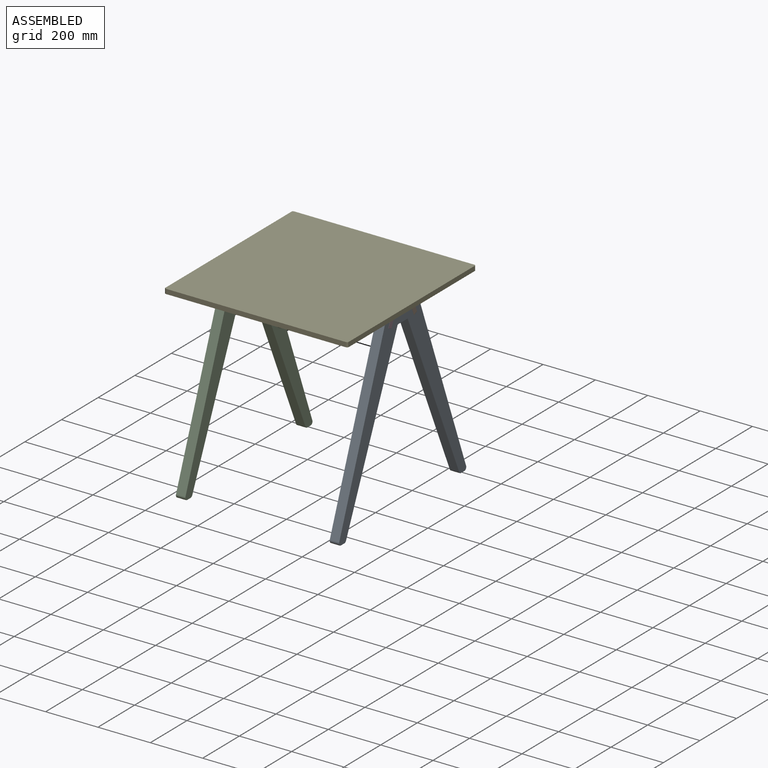
[diagram: assembled view]
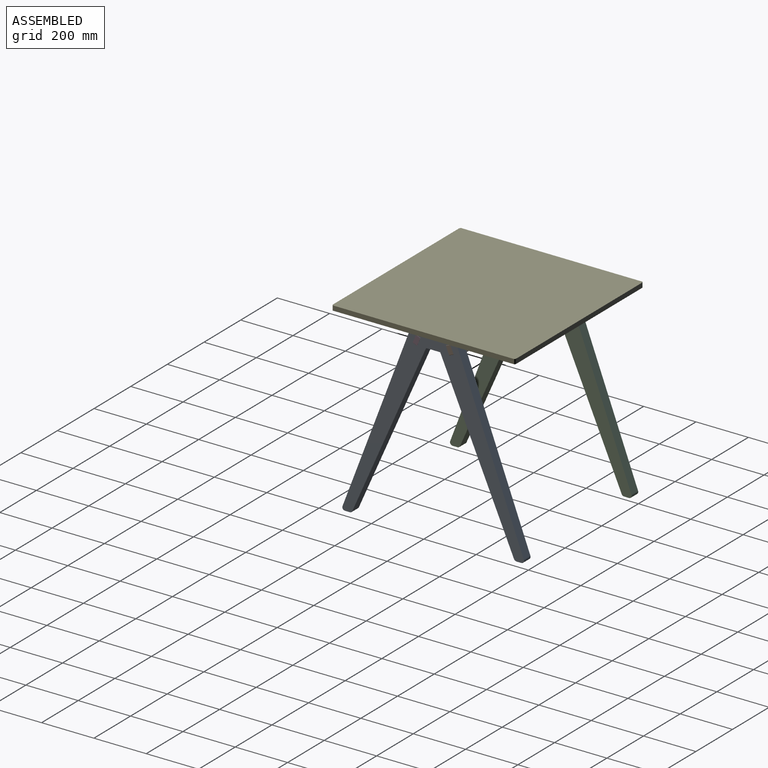
[diagram: assembled view, second angle]
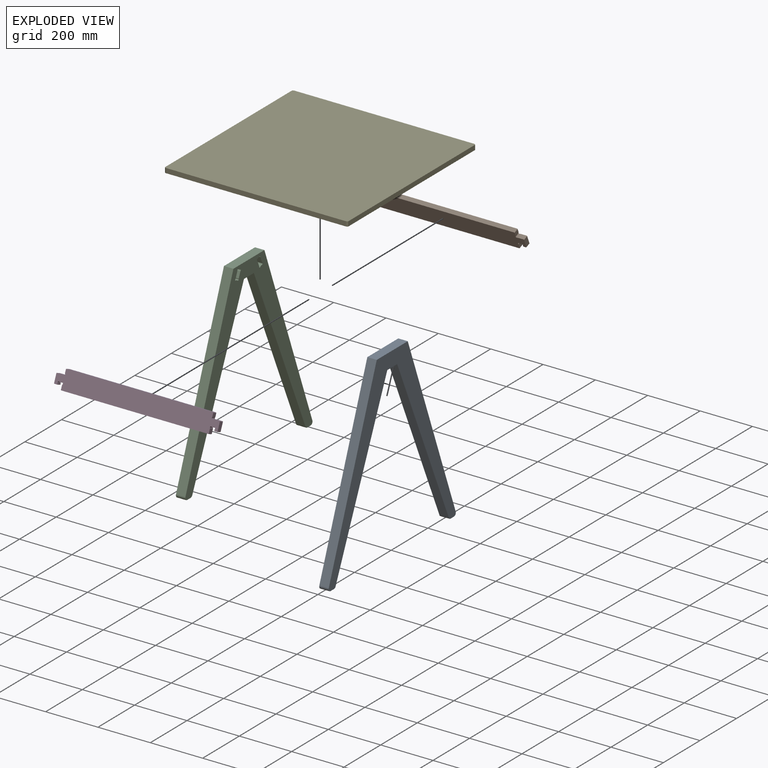
[diagram: exploded view]
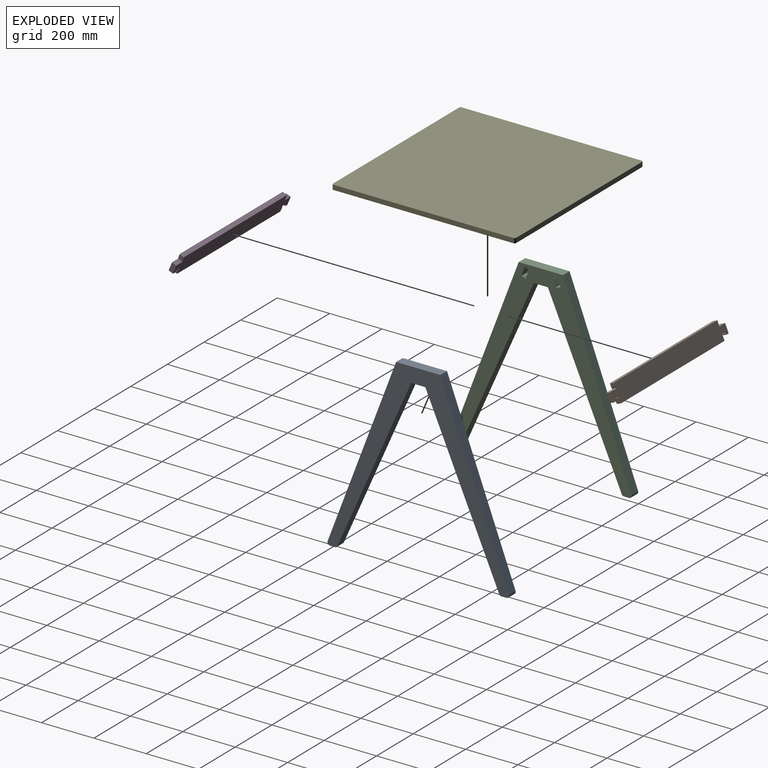
[diagram: exploded view, second angle]
ASSEMBLY  parts=5 mates=3
PART A: 38 faces, bbox 36x694.1x702 mm
  f0: plane 702.04x694.13mm, normal (-1,0,0), area 86384.5mm2, adj f1,f2,f3,f4,f5,f6,f7,f8
  f1: plane 36x27mm, normal (0,0,-1), area 971.9mm2, adj f0,f2,f18,f19
  f2: plane 36x0mm, normal (0,-0.85,0.53), area 0.2mm2, adj f0,f1,f3,f19
  f3: plane 638.9x282.02mm, normal (0,-0.91,-0.4), area 25141.4mm2, adj f0,f2,f4,f19
  f4: cylinder r=10mm len=36mm, axis (-1,0,0), area 415.8mm2, adj f0,f3,f5,f19
  f5: plane 36x18.89mm, normal (0,0,-1), area 680.2mm2, adj f0,f4,f6,f19
  f6: cylinder r=10mm len=36mm, axis (-1,0,0), area 696.3mm2, adj f0,f5,f7,f19
  f7: plane 688.47x261.77mm, normal (0,0.93,0.36), area 26516.1mm2, adj f0,f6,f8,f19
  f8: plane 82.88x36mm, normal (0,0,1), area 2983.7mm2, adj f0,f7,f9,f19
  f9: plane 36x0mm, normal (0,0.6,-0.8), area 0mm2, adj f0,f8,f10,f19
  f10: plane 36x1.76mm, normal (0,0,1), area 63.3mm2, adj f0,f9,f11,f19
  f11: plane 84.64x36mm, normal (0,0,1), area 3046.9mm2, adj f0,f10,f12,f19
  f12: plane 688.47x261.78mm, normal (0,-0.93,0.36), area 26516.1mm2, adj f0,f11,f13,f19
  f13: cylinder r=10mm len=36mm, axis (-1,0,0), area 696.3mm2, adj f0,f12,f14,f19
  f14: plane 36x18.89mm, normal (0,0,-1), area 680.2mm2, adj f0,f13,f15,f19
  f15: cylinder r=10mm len=36mm, axis (-1,0,0), area 415.8mm2, adj f0,f14,f16,f19
  f16: plane 636.51x280.97mm, normal (0,0.91,-0.4), area 25047.5mm2, adj f0,f15,f17,f19
  f17: cylinder r=4mm len=36mm, axis (-1,0,0), area 166.3mm2, adj f0,f16,f18,f19
  f18: plane 36x24.39mm, normal (0,0,-1), area 878mm2, adj f0,f1,f17,f19
  f19: plane 702.04x694.13mm, normal (1,0,0), area 87734.9mm2, adj f1,f2,f3,f4,f5,f6,f7,f8
  f20: cylinder r=4mm len=30mm, axis (-1,0,0), area 378.8mm2, adj f0,f21,f27,f28
  f21: plane 30x6.16mm, normal (0,0.39,-0.92), area 200.5mm2, adj f0,f20,f22,f28
  f22: cylinder r=4mm len=30mm, axis (-1,0,0), area 378.6mm2, adj f0,f21,f23,f28
  f23: plane 30x22.61mm, normal (0,0.92,0.39), area 738.2mm2, adj f0,f22,f24,f28
  f24: cylinder r=4mm len=30mm, axis (-1,0,0), area 378.6mm2, adj f0,f23,f25,f28
  f25: plane 30x5.8mm, normal (0,-0.39,0.92), area 188.5mm2, adj f0,f24,f26,f28
  f26: cylinder r=4mm len=30mm, axis (-1,0,0), area 378.8mm2, adj f0,f25,f27,f28
  f27: plane 30x22.77mm, normal (0,-0.93,-0.38), area 738.1mm2, adj f0,f20,f26,f28
  f28: plane 40.67x30.93mm, normal (-1,0,0), area 675.2mm2, adj f20,f21,f22,f23,f24,f25,f26,f27
  f29: plane 30x6.16mm, normal (0,-0.39,-0.92), area 200.5mm2, adj f0,f30,f36,f37
  f30: cylinder r=4mm len=30mm, axis (-1,0,0), area 378.8mm2, adj f0,f29,f31,f37
  f31: plane 30x22.77mm, normal (0,0.93,-0.38), area 738.1mm2, adj f0,f30,f32,f37
  f32: cylinder r=4mm len=30mm, axis (-1,0,0), area 378.8mm2, adj f0,f31,f33,f37
  f33: plane 30x5.8mm, normal (0,0.39,0.92), area 188.5mm2, adj f0,f32,f34,f37
  f34: cylinder r=4mm len=30mm, axis (-1,0,0), area 378.6mm2, adj f0,f33,f35,f37
  f35: plane 30x22.61mm, normal (0,-0.92,0.39), area 738.2mm2, adj f0,f34,f36,f37
  f36: cylinder r=4mm len=30mm, axis (-1,0,0), area 378.6mm2, adj f0,f29,f35,f37
  f37: plane 40.67x30.93mm, normal (-1,0,0), area 675.2mm2, adj f29,f30,f31,f32,f33,f34,f35,f36
PART B: 34 faces, bbox 70x18x624.8 mm
  f0: plane 563.03x18mm, normal (-1,0,0), area 10134.6mm2, adj f1,f31,f32,f33
  f1: cylinder r=1mm len=18mm, axis (0,1,0), area 28.3mm2, adj f0,f2,f32,f33
  f2: plane 18x17.34mm, normal (0,0,-1), area 312.2mm2, adj f1,f3,f32,f33
  f3: cylinder r=4mm len=18mm, axis (0,1,0), area 226.2mm2, adj f2,f4,f32,f33
  f4: plane 18x5.69mm, normal (-1,0,0), area 102.4mm2, adj f3,f5,f32,f33
  f5: cylinder r=4mm len=18mm, axis (0,1,0), area 226.2mm2, adj f4,f6,f32,f33
  f6: plane 18x2.34mm, normal (0,0,1), area 42.2mm2, adj f5,f7,f32,f33
  f7: cylinder r=2mm len=18mm, axis (0,1,0), area 56.5mm2, adj f6,f8,f32,f33
  f8: plane 18x8.88mm, normal (-1,0,0), area 159.9mm2, adj f7,f9,f32,f33
  f9: cylinder r=2mm len=18mm, axis (0,1,0), area 56.5mm2, adj f8,f10,f32,f33
  f10: plane 31.24x18mm, normal (0,0,-1), area 562.3mm2, adj f9,f11,f32,f33
  f11: cylinder r=2mm len=18mm, axis (0,1,0), area 56.5mm2, adj f10,f12,f32,f33
  f12: plane 23.24x18mm, normal (1,0,0), area 418.4mm2, adj f11,f13,f32,f33
  f13: cylinder r=4mm len=18mm, axis (0,1,0), area 226.2mm2, adj f12,f14,f32,f33
  f14: plane 18x13.09mm, normal (0,0,-1), area 235.7mm2, adj f13,f15,f32,f33
  f15: cylinder r=2mm len=18mm, axis (0,1,0), area 56.5mm2, adj f14,f16,f32,f33
  f16: plane 559.03x18mm, normal (1,0,0), area 10062.6mm2, adj f15,f17,f32,f33
  f17: cylinder r=2mm len=18mm, axis (0,1,0), area 56.5mm2, adj f16,f18,f32,f33
  f18: plane 18x13.09mm, normal (0,0,1), area 235.7mm2, adj f17,f19,f32,f33
  f19: cylinder r=4mm len=18mm, axis (0,1,0), area 223.8mm2, adj f18,f20,f32,f33
  f20: plane 23.34x18mm, normal (1,0,0), area 420.1mm2, adj f19,f21,f32,f33
  f21: cylinder r=2mm len=18mm, axis (0,1,0), area 56.5mm2, adj f20,f22,f32,f33
  f22: plane 31.15x18mm, normal (0,0,1), area 560.7mm2, adj f21,f23,f32,f33
  f23: cylinder r=2mm len=18mm, axis (0,1,0), area 56.5mm2, adj f22,f24,f32,f33
  f24: plane 18x8.9mm, normal (-1,0,0), area 160.2mm2, adj f23,f25,f32,f33
  f25: cylinder r=2mm len=18mm, axis (0,1,0), area 56.5mm2, adj f24,f26,f32,f33
  f26: plane 18x2.34mm, normal (0,0,-1), area 42.2mm2, adj f25,f27,f32,f33
  f27: cylinder r=4mm len=18mm, axis (0,1,0), area 226.2mm2, adj f26,f28,f32,f33
  f28: plane 18x6.69mm, normal (-1,0,0), area 120.4mm2, adj f27,f29,f32,f33
  f29: cylinder r=4mm len=18mm, axis (0,1,0), area 248.6mm2, adj f28,f30,f32,f33
  f30: plane 18x16.61mm, normal (0,0,1), area 299.1mm2, adj f29,f31,f32,f33
  f31: cylinder r=1mm len=18mm, axis (0,1,0), area 28.3mm2, adj f0,f30,f32,f33
  f32: plane 624.83x70mm, normal (0,-1,0), area 41207.6mm2, adj f0,f1,f2,f3,f4,f5,f6,f7
  f33: plane 624.83x70mm, normal (0,1,0), area 41207.6mm2, adj f0,f1,f2,f3,f4,f5,f6,f7
PART C: same geometry as A
PART D: same geometry as B
PART E: 134 faces, bbox 700x700x18 mm
  f0: plane 691.25x18mm, normal (1,0,0), area 12442.5mm2, adj f1,f131,f132,f133
  f1: plane 18x0.23mm, normal (1,0.05,0), area 4.1mm2, adj f0,f2,f132,f133
  f2: plane 18x0.22mm, normal (0.99,0.15,0), area 4mm2, adj f1,f3,f132,f133
  f3: plane 18x0.22mm, normal (0.97,0.25,0), area 4.1mm2, adj f2,f4,f132,f133
  f4: plane 18x0.22mm, normal (0.94,0.34,0), area 4.1mm2, adj f3,f5,f132,f133
  f5: plane 18x0.21mm, normal (0.91,0.42,0), area 4.2mm2, adj f4,f6,f132,f133
  f6: plane 18x0.21mm, normal (0.87,0.49,0), area 4.3mm2, adj f5,f7,f132,f133
  f7: plane 18x0.2mm, normal (0.83,0.56,0), area 4.4mm2, adj f6,f8,f132,f133
  f8: plane 18x0.2mm, normal (0.79,0.62,0), area 4.6mm2, adj f7,f9,f132,f133
  f9: plane 18x0.19mm, normal (0.74,0.67,0), area 4.7mm2, adj f8,f10,f132,f133
  f10: plane 18x0.19mm, normal (0.7,0.72,0), area 4.9mm2, adj f9,f11,f132,f133
  f11: plane 18x0.21mm, normal (0.66,0.75,0), area 5mm2, adj f10,f12,f132,f133
  f12: plane 18x0.23mm, normal (0.61,0.79,0), area 5.2mm2, adj f11,f13,f132,f133
  f13: plane 18x0.24mm, normal (0.58,0.82,0), area 5.4mm2, adj f12,f14,f132,f133
  f14: plane 18x0.26mm, normal (0.54,0.84,0), area 5.5mm2, adj f13,f15,f132,f133
  f15: plane 18x0.28mm, normal (0.5,0.87,0), area 5.7mm2, adj f14,f16,f132,f133
  f16: plane 18x0.29mm, normal (0.46,0.89,0), area 5.9mm2, adj f15,f17,f132,f133
  f17: plane 18x0.3mm, normal (0.43,0.9,0), area 6.1mm2, adj f16,f18,f132,f133
  f18: plane 18x0.32mm, normal (0.4,0.92,0), area 6.2mm2, adj f17,f19,f132,f133
  f19: plane 18x0.33mm, normal (0.37,0.93,0), area 6.4mm2, adj f18,f20,f132,f133
  f20: plane 18x0.34mm, normal (0.34,0.94,0), area 6.6mm2, adj f19,f21,f132,f133
  f21: plane 18x0.36mm, normal (0.31,0.95,0), area 6.7mm2, adj f20,f22,f132,f133
  f22: plane 18x0.37mm, normal (0.28,0.96,0), area 6.9mm2, adj f21,f23,f132,f133
  f23: plane 18x0.38mm, normal (0.25,0.97,0), area 7mm2, adj f22,f24,f132,f133
  f24: plane 18x0.39mm, normal (0.22,0.98,0), area 7.2mm2, adj f23,f25,f132,f133
  f25: plane 18x0.4mm, normal (0.19,0.98,0), area 7.3mm2, adj f24,f26,f132,f133
  f26: plane 18x0.41mm, normal (0.17,0.99,0), area 7.4mm2, adj f25,f27,f132,f133
  f27: plane 18x0.42mm, normal (0.14,0.99,0), area 7.5mm2, adj f26,f28,f132,f133
  f28: plane 18x0.42mm, normal (0.11,0.99,0), area 7.7mm2, adj f27,f29,f132,f133
  f29: plane 18x0.43mm, normal (0.09,1,0), area 7.8mm2, adj f28,f30,f132,f133
  f30: plane 18x0.44mm, normal (0.06,1,0), area 7.9mm2, adj f29,f31,f132,f133
  f31: plane 18x0.44mm, normal (0.04,1,0), area 8mm2, adj f30,f32,f132,f133
  f32: plane 18x0.45mm, normal (0.01,1,0), area 8.1mm2, adj f31,f33,f132,f133
  f33: plane 682.5x18mm, normal (0,1,0), area 12285mm2, adj f32,f34,f132,f133
  f34: plane 18x0.45mm, normal (-0.01,1,0), area 8.1mm2, adj f33,f35,f132,f133
  f35: plane 18x0.44mm, normal (-0.04,1,0), area 8mm2, adj f34,f36,f132,f133
  f36: plane 18x0.44mm, normal (-0.06,1,0), area 7.9mm2, adj f35,f37,f132,f133
  f37: plane 18x0.43mm, normal (-0.09,1,0), area 7.8mm2, adj f36,f38,f132,f133
  f38: plane 18x0.42mm, normal (-0.11,0.99,0), area 7.7mm2, adj f37,f39,f132,f133
  f39: plane 18x0.42mm, normal (-0.14,0.99,0), area 7.5mm2, adj f38,f40,f132,f133
  f40: plane 18x0.41mm, normal (-0.17,0.99,0), area 7.4mm2, adj f39,f41,f132,f133
  f41: plane 18x0.4mm, normal (-0.19,0.98,0), area 7.3mm2, adj f40,f42,f132,f133
  f42: plane 18x0.39mm, normal (-0.22,0.98,0), area 7.2mm2, adj f41,f43,f132,f133
  f43: plane 18x0.38mm, normal (-0.25,0.97,0), area 7mm2, adj f42,f44,f132,f133
  f44: plane 18x0.37mm, normal (-0.28,0.96,0), area 6.9mm2, adj f43,f45,f132,f133
  f45: plane 18x0.36mm, normal (-0.31,0.95,0), area 6.7mm2, adj f44,f46,f132,f133
  f46: plane 18x0.34mm, normal (-0.34,0.94,0), area 6.6mm2, adj f45,f47,f132,f133
  f47: plane 18x0.33mm, normal (-0.37,0.93,0), area 6.4mm2, adj f46,f48,f132,f133
  f48: plane 18x0.32mm, normal (-0.4,0.92,0), area 6.2mm2, adj f47,f49,f132,f133
  f49: plane 18x0.3mm, normal (-0.43,0.9,0), area 6.1mm2, adj f48,f50,f132,f133
  f50: plane 18x0.29mm, normal (-0.46,0.89,0), area 5.9mm2, adj f49,f51,f132,f133
  f51: plane 18x0.28mm, normal (-0.5,0.87,0), area 5.7mm2, adj f50,f52,f132,f133
  f52: plane 18x0.26mm, normal (-0.54,0.84,0), area 5.5mm2, adj f51,f53,f132,f133
  f53: plane 18x0.24mm, normal (-0.58,0.82,0), area 5.4mm2, adj f52,f54,f132,f133
  f54: plane 18x0.23mm, normal (-0.61,0.79,0), area 5.2mm2, adj f53,f55,f132,f133
  f55: plane 18x0.21mm, normal (-0.66,0.75,0), area 5mm2, adj f54,f56,f132,f133
  f56: plane 18x0.19mm, normal (-0.7,0.72,0), area 4.9mm2, adj f55,f57,f132,f133
  f57: plane 18x0.19mm, normal (-0.74,0.67,0), area 4.7mm2, adj f56,f58,f132,f133
  f58: plane 18x0.2mm, normal (-0.79,0.62,0), area 4.6mm2, adj f57,f59,f132,f133
  f59: plane 18x0.2mm, normal (-0.83,0.56,0), area 4.4mm2, adj f58,f60,f132,f133
  f60: plane 18x0.21mm, normal (-0.87,0.49,0), area 4.3mm2, adj f59,f61,f132,f133
  f61: plane 18x0.21mm, normal (-0.91,0.42,0), area 4.2mm2, adj f60,f62,f132,f133
  f62: plane 18x0.22mm, normal (-0.94,0.34,0), area 4.1mm2, adj f61,f63,f132,f133
  f63: plane 18x0.22mm, normal (-0.97,0.25,0), area 4.1mm2, adj f62,f64,f132,f133
  f64: plane 18x0.22mm, normal (-0.99,0.15,0), area 4mm2, adj f63,f65,f132,f133
  f65: plane 18x0.23mm, normal (-1,0.05,0), area 4.1mm2, adj f64,f66,f132,f133
  f66: plane 691.25x18mm, normal (-1,0,0), area 12442.5mm2, adj f65,f67,f132,f133
  f67: plane 18x0.23mm, normal (-1,-0.05,0), area 4.1mm2, adj f66,f68,f132,f133
  f68: plane 18x0.22mm, normal (-0.99,-0.15,0), area 4mm2, adj f67,f69,f132,f133
  f69: plane 18x0.22mm, normal (-0.97,-0.25,0), area 4.1mm2, adj f68,f70,f132,f133
  f70: plane 18x0.22mm, normal (-0.94,-0.34,0), area 4.1mm2, adj f69,f71,f132,f133
  f71: plane 18x0.21mm, normal (-0.91,-0.42,0), area 4.2mm2, adj f70,f72,f132,f133
  f72: plane 18x0.21mm, normal (-0.87,-0.49,0), area 4.3mm2, adj f71,f73,f132,f133
  f73: plane 18x0.2mm, normal (-0.83,-0.56,0), area 4.4mm2, adj f72,f74,f132,f133
  f74: plane 18x0.2mm, normal (-0.79,-0.62,0), area 4.6mm2, adj f73,f75,f132,f133
  f75: plane 18x0.19mm, normal (-0.74,-0.67,0), area 4.7mm2, adj f74,f76,f132,f133
  f76: plane 18x0.19mm, normal (-0.7,-0.72,0), area 4.9mm2, adj f75,f77,f132,f133
  f77: plane 18x0.21mm, normal (-0.66,-0.75,0), area 5mm2, adj f76,f78,f132,f133
  f78: plane 18x0.23mm, normal (-0.61,-0.79,0), area 5.2mm2, adj f77,f79,f132,f133
  f79: plane 18x0.24mm, normal (-0.58,-0.82,0), area 5.4mm2, adj f78,f80,f132,f133
  f80: plane 18x0.26mm, normal (-0.54,-0.84,0), area 5.5mm2, adj f79,f81,f132,f133
  f81: plane 18x0.28mm, normal (-0.5,-0.87,0), area 5.7mm2, adj f80,f82,f132,f133
  f82: plane 18x0.29mm, normal (-0.46,-0.89,0), area 5.9mm2, adj f81,f83,f132,f133
  f83: plane 18x0.3mm, normal (-0.43,-0.9,0), area 6.1mm2, adj f82,f84,f132,f133
  f84: plane 18x0.32mm, normal (-0.4,-0.92,0), area 6.2mm2, adj f83,f85,f132,f133
  f85: plane 18x0.33mm, normal (-0.37,-0.93,0), area 6.4mm2, adj f84,f86,f132,f133
  f86: plane 18x0.34mm, normal (-0.34,-0.94,0), area 6.6mm2, adj f85,f87,f132,f133
  f87: plane 18x0.36mm, normal (-0.31,-0.95,0), area 6.7mm2, adj f86,f88,f132,f133
  f88: plane 18x0.37mm, normal (-0.28,-0.96,0), area 6.9mm2, adj f87,f89,f132,f133
  f89: plane 18x0.38mm, normal (-0.25,-0.97,0), area 7mm2, adj f88,f90,f132,f133
  f90: plane 18x0.39mm, normal (-0.22,-0.98,0), area 7.2mm2, adj f89,f91,f132,f133
  f91: plane 18x0.4mm, normal (-0.19,-0.98,0), area 7.3mm2, adj f90,f92,f132,f133
  f92: plane 18x0.41mm, normal (-0.17,-0.99,0), area 7.4mm2, adj f91,f93,f132,f133
  f93: plane 18x0.42mm, normal (-0.14,-0.99,0), area 7.5mm2, adj f92,f94,f132,f133
  f94: plane 18x0.42mm, normal (-0.11,-0.99,0), area 7.7mm2, adj f93,f95,f132,f133
  f95: plane 18x0.43mm, normal (-0.09,-1,0), area 7.8mm2, adj f94,f96,f132,f133
  f96: plane 18x0.44mm, normal (-0.06,-1,0), area 7.9mm2, adj f95,f97,f132,f133
  f97: plane 18x0.44mm, normal (-0.04,-1,0), area 8mm2, adj f96,f98,f132,f133
  f98: plane 18x0.45mm, normal (-0.01,-1,0), area 8.1mm2, adj f97,f99,f132,f133
  f99: plane 682.5x18mm, normal (0,-1,0), area 12285mm2, adj f98,f100,f132,f133
  f100: plane 18x0.45mm, normal (0.01,-1,0), area 8.1mm2, adj f99,f101,f132,f133
  f101: plane 18x0.44mm, normal (0.04,-1,0), area 8mm2, adj f100,f102,f132,f133
  f102: plane 18x0.44mm, normal (0.06,-1,0), area 7.9mm2, adj f101,f103,f132,f133
  f103: plane 18x0.43mm, normal (0.09,-1,0), area 7.8mm2, adj f102,f104,f132,f133
  f104: plane 18x0.42mm, normal (0.11,-0.99,0), area 7.7mm2, adj f103,f105,f132,f133
  f105: plane 18x0.42mm, normal (0.14,-0.99,0), area 7.5mm2, adj f104,f106,f132,f133
  f106: plane 18x0.41mm, normal (0.17,-0.99,0), area 7.4mm2, adj f105,f107,f132,f133
  f107: plane 18x0.4mm, normal (0.19,-0.98,0), area 7.3mm2, adj f106,f108,f132,f133
  f108: plane 18x0.39mm, normal (0.22,-0.98,0), area 7.2mm2, adj f107,f109,f132,f133
  f109: plane 18x0.38mm, normal (0.25,-0.97,0), area 7mm2, adj f108,f110,f132,f133
  f110: plane 18x0.37mm, normal (0.28,-0.96,0), area 6.9mm2, adj f109,f111,f132,f133
  f111: plane 18x0.36mm, normal (0.31,-0.95,0), area 6.7mm2, adj f110,f112,f132,f133
  f112: plane 18x0.34mm, normal (0.34,-0.94,0), area 6.6mm2, adj f111,f113,f132,f133
  f113: plane 18x0.33mm, normal (0.37,-0.93,0), area 6.4mm2, adj f112,f114,f132,f133
  f114: plane 18x0.32mm, normal (0.4,-0.92,0), area 6.2mm2, adj f113,f115,f132,f133
  f115: plane 18x0.3mm, normal (0.43,-0.9,0), area 6.1mm2, adj f114,f116,f132,f133
  f116: plane 18x0.29mm, normal (0.46,-0.89,0), area 5.9mm2, adj f115,f117,f132,f133
  f117: plane 18x0.28mm, normal (0.5,-0.87,0), area 5.7mm2, adj f116,f118,f132,f133
  f118: plane 18x0.26mm, normal (0.54,-0.84,0), area 5.5mm2, adj f117,f119,f132,f133
  f119: plane 18x0.24mm, normal (0.58,-0.82,0), area 5.4mm2, adj f118,f120,f132,f133
  f120: plane 18x0.23mm, normal (0.61,-0.79,0), area 5.2mm2, adj f119,f121,f132,f133
  f121: plane 18x0.21mm, normal (0.66,-0.75,0), area 5mm2, adj f120,f122,f132,f133
  f122: plane 18x0.19mm, normal (0.7,-0.72,0), area 4.9mm2, adj f121,f123,f132,f133
  f123: plane 18x0.19mm, normal (0.74,-0.67,0), area 4.7mm2, adj f122,f124,f132,f133
  f124: plane 18x0.2mm, normal (0.79,-0.62,0), area 4.6mm2, adj f123,f125,f132,f133
  f125: plane 18x0.2mm, normal (0.83,-0.56,0), area 4.4mm2, adj f124,f126,f132,f133
  f126: plane 18x0.21mm, normal (0.87,-0.49,0), area 4.3mm2, adj f125,f127,f132,f133
  f127: plane 18x0.21mm, normal (0.91,-0.42,0), area 4.2mm2, adj f126,f128,f132,f133
  f128: plane 18x0.22mm, normal (0.94,-0.34,0), area 4.1mm2, adj f127,f129,f132,f133
  f129: plane 18x0.22mm, normal (0.97,-0.25,0), area 4.1mm2, adj f128,f130,f132,f133
  f130: plane 18x0.22mm, normal (0.99,-0.15,0), area 4mm2, adj f129,f131,f132,f133
  f131: plane 18x0.23mm, normal (1,-0.05,0), area 4.1mm2, adj f0,f130,f132,f133
  f132: plane 700x700mm, normal (0,0,1), area 489967.1mm2, adj f0,f1,f2,f3,f4,f5,f6,f7
  f133: plane 700x700mm, normal (0,0,-1), area 489967.1mm2, adj f0,f1,f2,f3,f4,f5,f6,f7
PLACE A rot(axis=(1,0,0),0deg) t=(604.75,2204.62,-606.72)mm
PLACE B rot(axis=(0.19,-0.96,-0.19),92.2deg) t=(328.73,2274.91,-288.99)mm fixed
PLACE C rot(axis=(0,0,1),180deg) t=(53.22,2204.63,-606.72)mm fixed
PLACE D rot(axis=(-0.19,-0.96,0.19),92.2deg) t=(328.73,2150.95,-295.94)mm fixed
PLACE E t=(331.36,2196,-255.78)mm
MATE planar D.f4 <-> A.f33  axis (0,-0.39,-0.92) through (619.75,2138.4,-302.61)mm
MATE planar D.f28 <-> C.f25  axis (0,-0.39,-0.92) through (38.22,2138.4,-302.61)mm
MATE planar B.f28 <-> C.f33  axis (0,0.39,-0.92) through (38.22,2270.85,-302.61)mm
